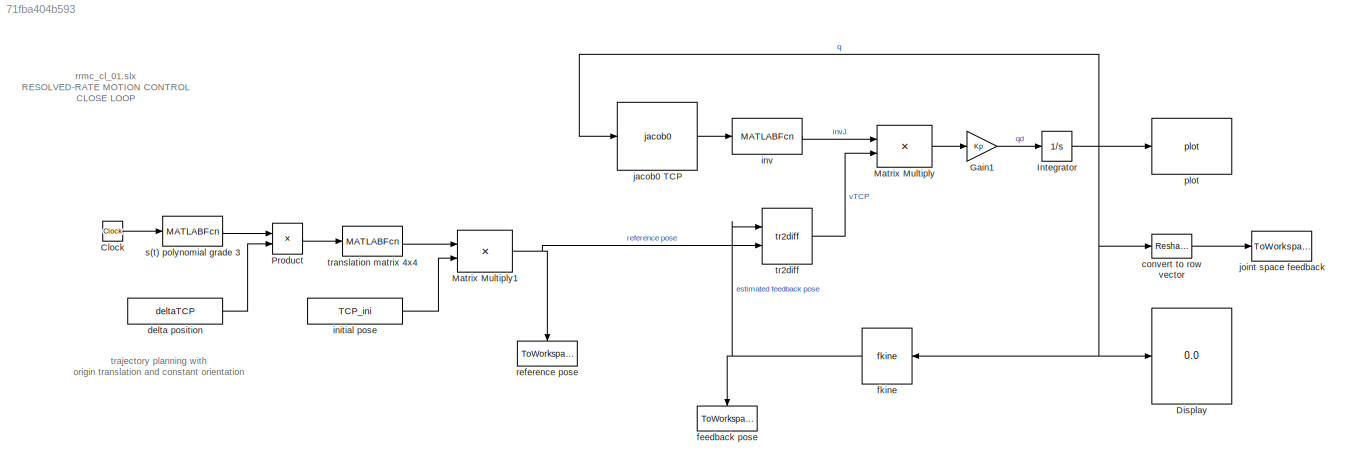
MODEL slx_71fba404b593
KIND model
CONFIG AbsTol = auto
CONFIG FixedStep = step_time
CONFIG MaxStep = 0.01
CONFIG MinStep = auto
CONFIG RelTol = 1e-3
CONFIG SampleTimeConstraint = Unconstrained
CONFIG Solver = ode1
CONFIG SolverMode = Auto
CONFIG SolverName = ode1
CONFIG StartTime = 0.0
CONFIG StopTime = stop_time
BLOCK [Clock] Clock
BLOCK [Display] Display
  Decimation = 1
  Ports = [1]
BLOCK [Gain] Gain1
  Gain = Kp
  OutDataTypeStr = Inherit: Inherit via internal rule
  ParamDataTypeStr = Inherit: Inherit via internal rule
  SaturateOnIntegerOverflow = off
BLOCK [Integrator] Integrator
  InitialCondition = qvet_ini
  Ports = [1, 1]
BLOCK [Product] Matrix Multiply
  InputSameDT = off
  Multiplication = Matrix(*)
  OutDataTypeStr = Inherit: Inherit via internal rule
  Ports = [2, 1]
  RndMeth = Floor
  SaturateOnIntegerOverflow = off
BLOCK [Product] Matrix Multiply1
  InputSameDT = off
  Multiplication = Matrix(*)
  OutDataTypeStr = Inherit: Inherit via internal rule
  Ports = [2, 1]
  RndMeth = Floor
  SaturateOnIntegerOverflow = off
BLOCK [Product] Product
  InputSameDT = off
  OutDataTypeStr = Inherit: Inherit via internal rule
  Ports = [2, 1]
  RndMeth = Floor
  SaturateOnIntegerOverflow = off
BLOCK [Reshape] convert to row vector
  OutputDimensions = 6
  Ports = [1, 1]
BLOCK [Constant] delta position
  Value = deltaTCP
  VectorParams1D = off
BLOCK [ToWorkspace] feedback pose
  FixptAsFi = on
  MaxDataPoints = inf
  Ports = [1]
  SampleTime = -1
  Save2DSignal = 3-D array (concatenate along third dimension)
  VariableName = Tfb
BLOCK [Reference] fkine  REF=roblocks/Kinematics/fkine  (lib defined in mdl_2a292b13c81b, mdl_69400f8cfe22, +12 more)
  Ports = [1, 1]
  SourceBlock = roblocks/Kinematics/fkine
  robot = rob6R
BLOCK [Constant] initial pose
  Value = TCP_ini
  VectorParams1D = off
BLOCK [MATLABFcn] inv
  MATLABFcn = inv
  Output1D = off
  Ports = [1, 1]
BLOCK [Reference] jacob0 TCP   REF=roblocks/Kinematics/jacob0  (lib defined in mdl_2a292b13c81b, mdl_69400f8cfe22, +12 more)

  Ports = [1, 1]
  SourceBlock = roblocks/Kinematics/jacob0
  robot = rob6R
BLOCK [ToWorkspace] joint space feedback
  FixptAsFi = on
  MaxDataPoints = inf
  Ports = [1]
  SampleTime = -1
  Save2DSignal = 3-D array (concatenate along third dimension)
  VariableName = qvet
BLOCK [Reference] plot  REF=roblocks/Robot Graphics/plot  (lib defined in mdl_2a292b13c81b, mdl_69400f8cfe22, +12 more)
  Ports = [1]
  SourceBlock = roblocks/Robot Graphics/plot
  fps = 25
  holdplot = on
  robot = rob6R
BLOCK [ToWorkspace] reference pose
  FixptAsFi = on
  MaxDataPoints = inf
  Ports = [1]
  SampleTime = -1
  Save2DSignal = 3-D array (concatenate along third dimension)
  VariableName = Tref
BLOCK [MATLABFcn] s(t) polynomial grade 3
  MATLABFcn = -2/stop_time^3*u^3+3/stop_time^2*u^2
  OutputDimensions = 1
  Ports = [1, 1]
BLOCK [Reference] tr2diff  REF=roblocks/Kinematics/tr2diff  (lib defined in mdl_2a292b13c81b, mdl_69400f8cfe22, +12 more)
  Ports = [2, 1]
  SourceBlock = roblocks/Kinematics/tr2diff
  robot = rob6R
BLOCK [MATLABFcn] translation matrix 4x4
  MATLABFcn = transl(u)
  Output1D = off
  Ports = [1, 1]
ANNOTATION (root): trajectory planning with origin translation and constant orientation
ANNOTATION (root): rrmc_cl_01.slx RESOLVED-RATE MOTION CONTROL CLOSE LOOP
LINE Clock:1 -> s(t) polynomial grade 3:1
LINE Gain1:1 -> Integrator:1
NET Integrator:1 -> Display:1, convert to row vector:1, fkine:1, jacob0 TCP :1, plot:1
NET Matrix Multiply1:1 -> reference pose:1, tr2diff:2
LINE Matrix Multiply:1 -> Gain1:1
LINE Product:1 -> translation matrix 4x4:1
LINE convert to row vector:1 -> joint space feedback:1
LINE delta position:1 -> Product:2
NET fkine:1 -> feedback pose:1, tr2diff:1
LINE initial pose:1 -> Matrix Multiply1:2
LINE inv:1 -> Matrix Multiply:1
LINE jacob0 TCP :1 -> inv:1
LINE s(t) polynomial grade 3:1 -> Product:1
LINE tr2diff:1 -> Matrix Multiply:2
LINE translation matrix 4x4:1 -> Matrix Multiply1:1
note: NET lines group one-source signal fan-out (src -> all destinations, sorted); 1:1 wires keep LINE
